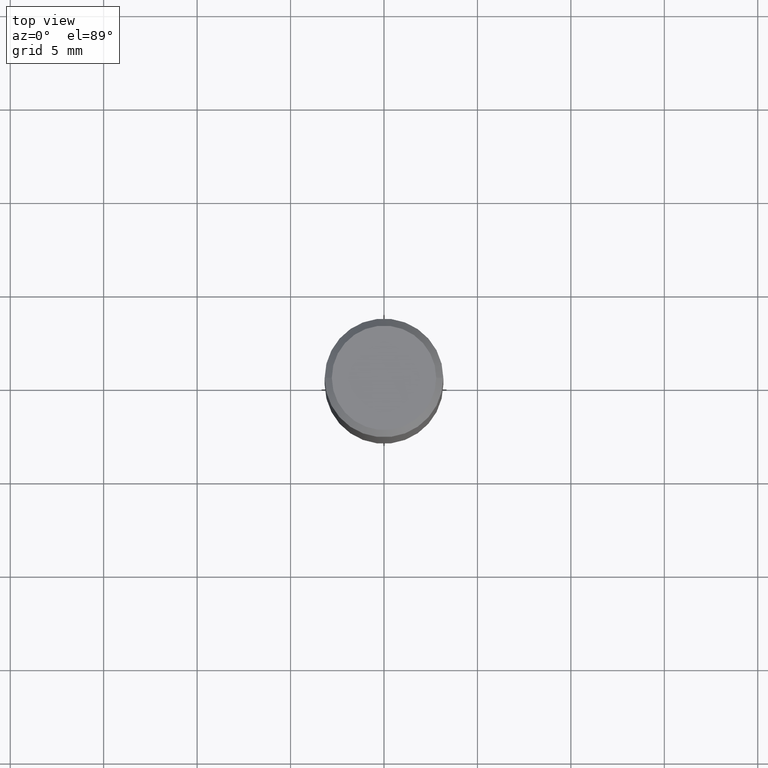
[diagram: clean part render]
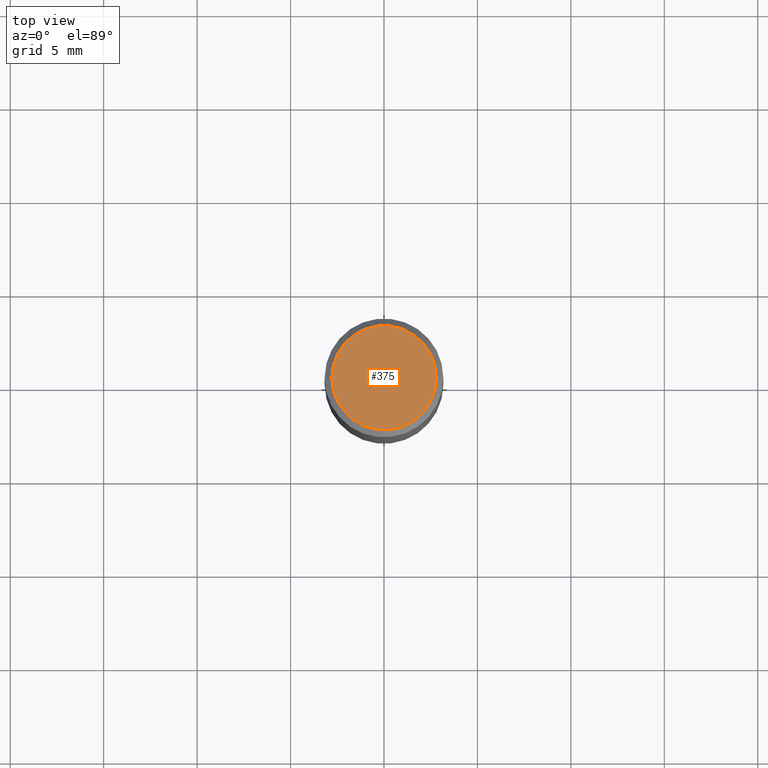
[diagram: same view with one face highlighted and labeled with its STEP entity id]
A machine part, top view. The second image highlights one B-rep face of the part: STEP entity #375.
In plain terms, the highlighted planar face has unit normal (0, -0, -1).
Its self-contained STEP definition (entity closure, byte-faithful):
#31 = DIRECTION ( 'NONE',  ( 1.000000000000000000, -6.982962677686266711E-15, 4.876001053725558154E-29 ) ) ;
#33 = AXIS2_PLACEMENT_3D ( 'NONE', #447, #189, #362 ) ;
#36 = CARTESIAN_POINT ( 'NONE',  ( 0.1100000000000000006, -8.322946247794786836E-16, -7.674416657715788472E-18 ) ) ;
#68 = DIRECTION ( 'NONE',  ( 1.000000000000000000, -6.982962677686266711E-15, 4.876001053725558154E-29 ) ) ;
#115 = ORIENTED_EDGE ( 'NONE', *, *, #265, .T. ) ;
#158 = FACE_OUTER_BOUND ( 'NONE', #449, .T. ) ;
#172 = CARTESIAN_POINT ( 'NONE',  ( -0.1100000000000000006, 7.943120045868128186E-16, -7.674416657726847932E-18 ) ) ;
#174 = CARTESIAN_POINT ( 'NONE',  ( 1.876754654212523840E-46, -2.679508254694119990E-32, -7.674416657721384454E-18 ) ) ;
#189 = DIRECTION ( 'NONE',  ( 2.438088387897960049E-29, -3.491481338843145188E-15, -1.000000000000000000 ) ) ;
#208 = DIRECTION ( 'NONE',  ( -2.445468806185136597E-29, 3.491481338843145583E-15, 1.000000000000000000 ) ) ;
#214 = EDGE_CURVE ( 'NONE', #297, #306, #271, .T. ) ;
#263 = AXIS2_PLACEMENT_3D ( 'NONE', #174, #351, #68 ) ;
#265 = EDGE_CURVE ( 'NONE', #306, #297, #462, .T. ) ;
#271 = CIRCLE ( 'NONE', #263, 0.1100000000000000006 ) ;
#297 = VERTEX_POINT ( 'NONE', #36 ) ;
#306 = VERTEX_POINT ( 'NONE', #172 ) ;
#330 = ORIENTED_EDGE ( 'NONE', *, *, #214, .T. ) ;
#351 = DIRECTION ( 'NONE',  ( -2.445468806185136597E-29, 3.491481338843145583E-15, 1.000000000000000000 ) ) ;
#362 = DIRECTION ( 'NONE',  ( -1.000000000000000000, 6.982962677686265922E-15, -4.876176775795935793E-29 ) ) ;
#367 = AXIS2_PLACEMENT_3D ( 'NONE', #430, #208, #31 ) ;
#375 = ADVANCED_FACE ( 'NONE', ( #158 ), #401, .F. ) ;
#401 = PLANE ( 'NONE',  #33 ) ;
#430 = CARTESIAN_POINT ( 'NONE',  ( 1.876754654212523840E-46, -2.679508254694119990E-32, -7.674416657721384454E-18 ) ) ;
#447 = CARTESIAN_POINT ( 'NONE',  ( 7.681258945454893776E-16, 0.1100000000000000006, -3.879001556016067477E-16 ) ) ;
#449 = EDGE_LOOP ( 'NONE', ( #115, #330 ) ) ;
#462 = CIRCLE ( 'NONE', #367, 0.1100000000000000006 ) ;